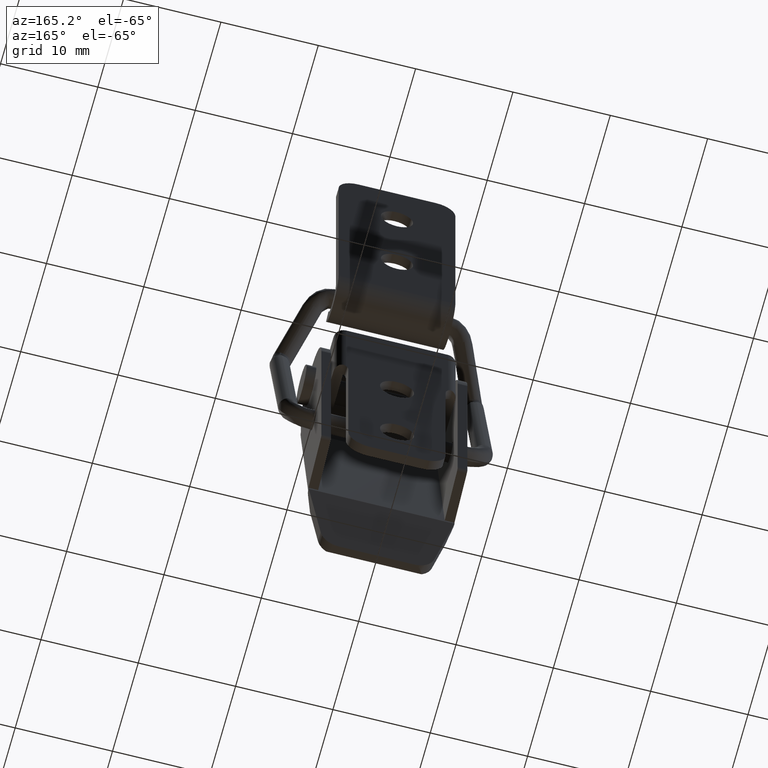
[diagram: clean part render]
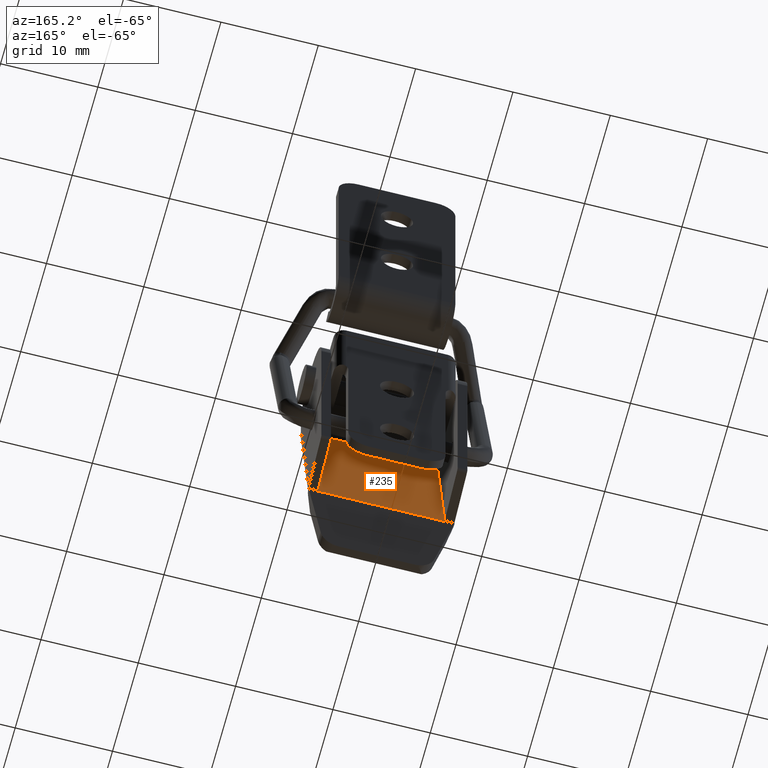
[diagram: same view with one face highlighted and labeled with its STEP entity id]
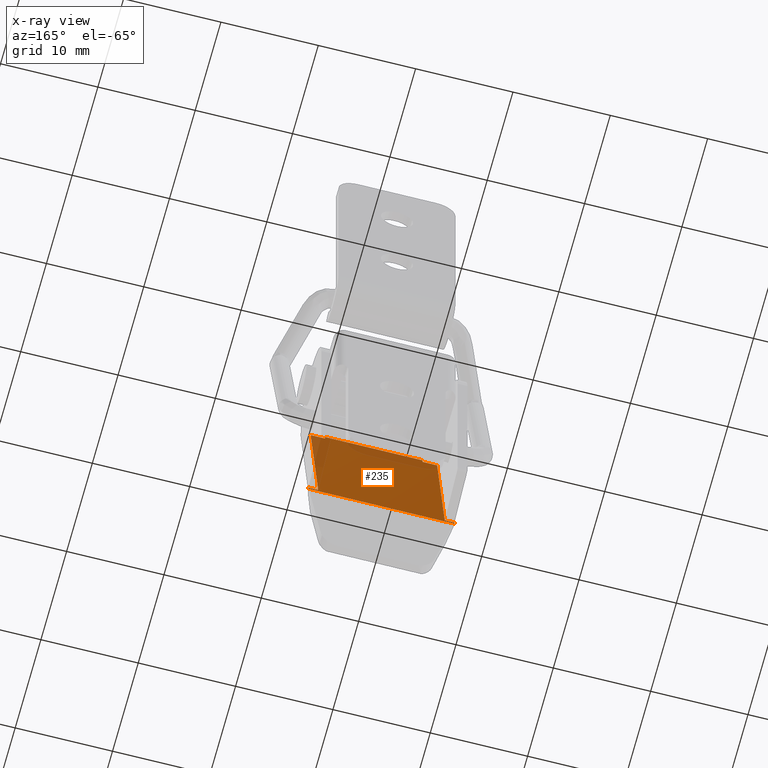
[diagram: x-ray of the same camera — body ghosted, the highlighted face saturated]
A machine part, auxiliary view. The second image highlights one B-rep face of the part: STEP entity #235.
The next image is the same camera in x-ray: the body ghosted, the highlighted face saturated — about 16% of this face is hidden behind the body in this view.
In plain terms, the highlighted planar face has unit normal (0, 0.9882, 0.1532).
Its self-contained STEP definition (entity closure, byte-faithful):
#235=ADVANCED_FACE('',(#814),#813,.T.);
#813=PLANE('',#1863);
#814=FACE_OUTER_BOUND('',#1864,.T.);
#1860=CARTESIAN_POINT('',(-9.00000000000E+00,-6.68109329088E-01,-2.40631979093E+01));
#1861=DIRECTION('',(0.00000000000E+00,9.88189297838E-01,1.53238088081E-01));
#1862=DIRECTION('',(0.00000000000E+00,-1.53238088081E-01,9.88189297838E-01));
#1863=AXIS2_PLACEMENT_3D('',#1860,#1861,#1862);
#1864=EDGE_LOOP('',(#3891,#3892,#3893,#3894,#3895,#3896,#3897,#3898,#3899,#3900,#3901,#3902,#3903,#3904));
#3891=ORIENTED_EDGE('',*,*,#4447,.F.);
#3892=ORIENTED_EDGE('',*,*,#4437,.T.);
#3893=ORIENTED_EDGE('',*,*,#4370,.F.);
#3894=ORIENTED_EDGE('',*,*,#4448,.T.);
#3895=ORIENTED_EDGE('',*,*,#4449,.F.);
#3896=ORIENTED_EDGE('',*,*,#4421,.F.);
#3897=ORIENTED_EDGE('',*,*,#4450,.F.);
#3898=ORIENTED_EDGE('',*,*,#4451,.T.);
#3899=ORIENTED_EDGE('',*,*,#4390,.F.);
#3900=ORIENTED_EDGE('',*,*,#4396,.F.);
#3901=ORIENTED_EDGE('',*,*,#4446,.F.);
#3902=ORIENTED_EDGE('',*,*,#4403,.F.);
#3903=ORIENTED_EDGE('',*,*,#4407,.F.);
#3904=ORIENTED_EDGE('',*,*,#4452,.F.);
#4370=EDGE_CURVE('',#5201,#5173,#5208,.T.);
#4390=EDGE_CURVE('',#5336,#5329,#5343,.T.);
#4396=EDGE_CURVE('',#5377,#5336,#5384,.T.);
#4403=EDGE_CURVE('',#5424,#5431,#5432,.T.);
#4407=EDGE_CURVE('',#5451,#5424,#5458,.T.);
#4421=EDGE_CURVE('',#5547,#5554,#5555,.T.);
#4437=EDGE_CURVE('',#5622,#5173,#5663,.T.);
#4446=EDGE_CURVE('',#5431,#5377,#5721,.T.);
#4447=EDGE_CURVE('',#5622,#5727,#5728,.T.);
#4448=EDGE_CURVE('',#5201,#5734,#5735,.T.);
#4449=EDGE_CURVE('',#5554,#5734,#5741,.T.);
#4450=EDGE_CURVE('',#5747,#5547,#5748,.T.);
#4451=EDGE_CURVE('',#5747,#5329,#5754,.T.);
#4452=EDGE_CURVE('',#5727,#5451,#5760,.T.);
#5173=VERTEX_POINT('',#7204);
#5201=VERTEX_POINT('',#7220);
#5208=LINE('',#7224,#7225);
#5329=VERTEX_POINT('',#7293);
#5336=VERTEX_POINT('',#7297);
#5343=LINE('',#7301,#7302);
#5377=VERTEX_POINT('',#7320);
#5384=LINE('',#7325,#7326);
#5424=VERTEX_POINT('',#7349);
#5431=VERTEX_POINT('',#7353);
#5432=LINE('',#7354,#7355);
#5451=VERTEX_POINT('',#7365);
#5458=LINE('',#7369,#7370);
#5547=VERTEX_POINT('',#7434);
#5554=VERTEX_POINT('',#7438);
#5555=LINE('',#7439,#7440);
#5622=VERTEX_POINT('',#7481);
#5663=LINE('',#7505,#7506);
#5721=LINE('',#7540,#7541);
#5727=VERTEX_POINT('',#7543);
#5728=LINE('',#7544,#7545);
#5734=VERTEX_POINT('',#7547);
#5735=LINE('',#7548,#7549);
#5741=LINE('',#7551,#7552);
#5747=VERTEX_POINT('',#7554);
#5748=LINE('',#7555,#7556);
#5754=LINE('',#7558,#7559);
#5760=LINE('',#7561,#7562);
#7204=CARTESIAN_POINT('',(7.50000000000E+00,-9.88048538754E-01,-2.20000000000E+01));
#7220=CARTESIAN_POINT('',(7.48136660767E+00,-9.77538482253E-01,-2.20677763961E+01));
#7224=CARTESIAN_POINT('',(7.48136660767E+00,-9.77538482253E-01,-2.20677763961E+01));
#7225=VECTOR('',#7226,7.10725295990E-02);
#7226=DIRECTION('',(2.62174322970E-01,-1.47877901060E-01,9.53622960479E-01));
#7293=CARTESIAN_POINT('',(-6.50000000000E+00,-3.98804813795E+00,-2.65384700000E+00));
#7297=CARTESIAN_POINT('',(-5.00000000000E+00,-3.98804813795E+00,-2.65384700000E+00));
#7301=CARTESIAN_POINT('',(-5.00000000000E+00,-3.98804813795E+00,-2.65384700000E+00));
#7302=VECTOR('',#7303,1.50000000000E+00);
#7303=DIRECTION('',(-1.00000000000E+00,0.00000000000E+00,0.00000000000E+00));
#7320=CARTESIAN_POINT('',(-5.00000000000E+00,-4.07183001390E+00,-2.11356126424E+00));
#7325=CARTESIAN_POINT('',(-5.00000000000E+00,-4.07183001390E+00,-2.11356126424E+00));
#7326=VECTOR('',#7327,5.46743156335E-01);
#7327=DIRECTION('',(0.00000000000E+00,1.53238088081E-01,-9.88189297838E-01));
#7349=CARTESIAN_POINT('',(5.00000000000E+00,-3.98804813795E+00,-2.65384700000E+00));
#7353=CARTESIAN_POINT('',(5.00000000000E+00,-4.07183001390E+00,-2.11356126424E+00));
#7354=CARTESIAN_POINT('',(5.00000000000E+00,-3.98804813795E+00,-2.65384700000E+00));
#7355=VECTOR('',#7356,5.46743156335E-01);
#7356=DIRECTION('',(0.00000000000E+00,-1.53238088081E-01,9.88189297838E-01));
#7365=CARTESIAN_POINT('',(6.50000000000E+00,-3.98804813795E+00,-2.65384700000E+00));
#7369=CARTESIAN_POINT('',(6.50000000000E+00,-3.98804813795E+00,-2.65384700000E+00));
#7370=VECTOR('',#7371,1.50000000000E+00);
#7371=DIRECTION('',(-1.00000000000E+00,0.00000000000E+00,0.00000000000E+00));
#7434=CARTESIAN_POINT('',(-7.50000000000E+00,-1.03778523427E+00,-2.16792620501E+01));
#7438=CARTESIAN_POINT('',(-7.50000000000E+00,-9.88048538754E-01,-2.20000000000E+01));
#7439=CARTESIAN_POINT('',(-7.50000000000E+00,-1.03778523427E+00,-2.16792620501E+01));
#7440=VECTOR('',#7441,3.24571365631E-01);
#7441=DIRECTION('',(0.00000000000E+00,1.53238088081E-01,-9.88189297838E-01));
#7481=CARTESIAN_POINT('',(7.50000000000E+00,-1.03778523427E+00,-2.16792620501E+01));
#7505=CARTESIAN_POINT('',(7.50000000000E+00,-1.03778523427E+00,-2.16792620501E+01));
#7506=VECTOR('',#7507,3.24571365631E-01);
#7507=DIRECTION('',(0.00000000000E+00,1.53238088081E-01,-9.88189297838E-01));
#7540=CARTESIAN_POINT('',(5.00000000000E+00,-4.07183001390E+00,-2.11356126424E+00));
#7541=VECTOR('',#7542,1.00000000000E+01);
#7542=DIRECTION('',(-1.00000000000E+00,0.00000000000E+00,0.00000000000E+00));
#7543=CARTESIAN_POINT('',(6.50000000000E+00,-1.03778523427E+00,-2.16792620501E+01));
#7544=CARTESIAN_POINT('',(7.50000000000E+00,-1.03778523427E+00,-2.16792620501E+01));
#7545=VECTOR('',#7546,1.00000000000E+00);
#7546=DIRECTION('',(-1.00000000000E+00,0.00000000000E+00,0.00000000000E+00));
#7547=CARTESIAN_POINT('',(-7.48136659599E+00,-9.77538482253E-01,-2.20677763961E+01));
#7548=CARTESIAN_POINT('',(7.48136660767E+00,-9.77538482253E-01,-2.20677763961E+01));
#7549=VECTOR('',#7550,1.49627332037E+01);
#7550=DIRECTION('',(-1.00000000000E+00,0.00000000000E+00,0.00000000000E+00));
#7551=CARTESIAN_POINT('',(-7.50000000000E+00,-9.88048538754E-01,-2.20000000000E+01));
#7552=VECTOR('',#7553,7.10725326600E-02);
#7553=DIRECTION('',(2.62174475957E-01,1.47877894691E-01,-9.53622919407E-01));
#7554=CARTESIAN_POINT('',(-6.50000000000E+00,-1.03778523427E+00,-2.16792620501E+01));
#7555=CARTESIAN_POINT('',(-6.50000000000E+00,-1.03778523427E+00,-2.16792620501E+01));
#7556=VECTOR('',#7557,1.00000000000E+00);
#7557=DIRECTION('',(-1.00000000000E+00,0.00000000000E+00,0.00000000000E+00));
#7558=CARTESIAN_POINT('',(-6.50000000000E+00,-1.03778523427E+00,-2.16792620501E+01));
#7559=VECTOR('',#7560,1.92528041861E+01);
#7560=DIRECTION('',(0.00000000000E+00,-1.53238088081E-01,9.88189297838E-01));
#7561=CARTESIAN_POINT('',(6.50000000000E+00,-1.03778523427E+00,-2.16792620501E+01));
#7562=VECTOR('',#7563,1.92528041861E+01);
#7563=DIRECTION('',(0.00000000000E+00,-1.53238088081E-01,9.88189297838E-01));